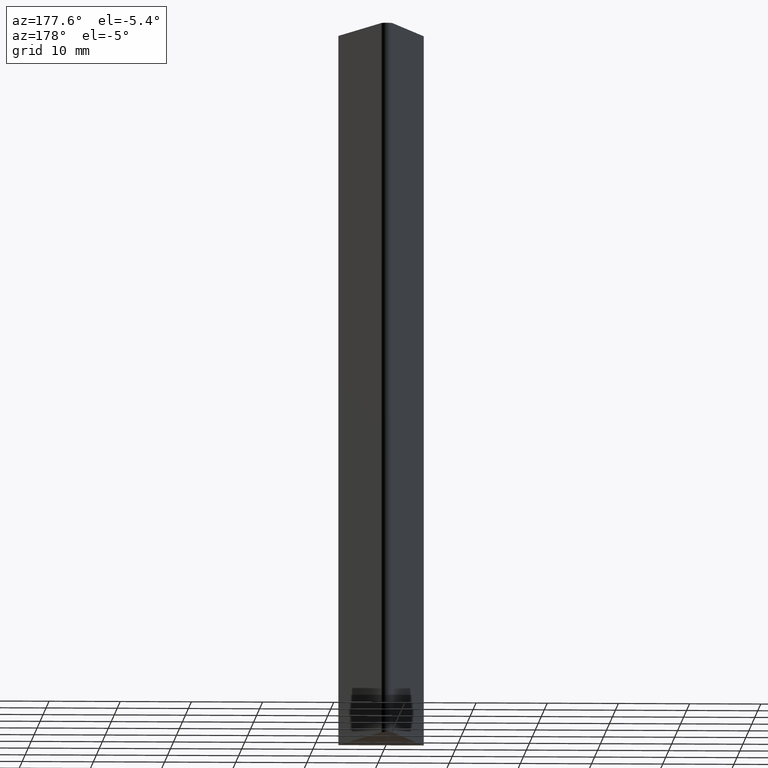
[diagram: clean part render]
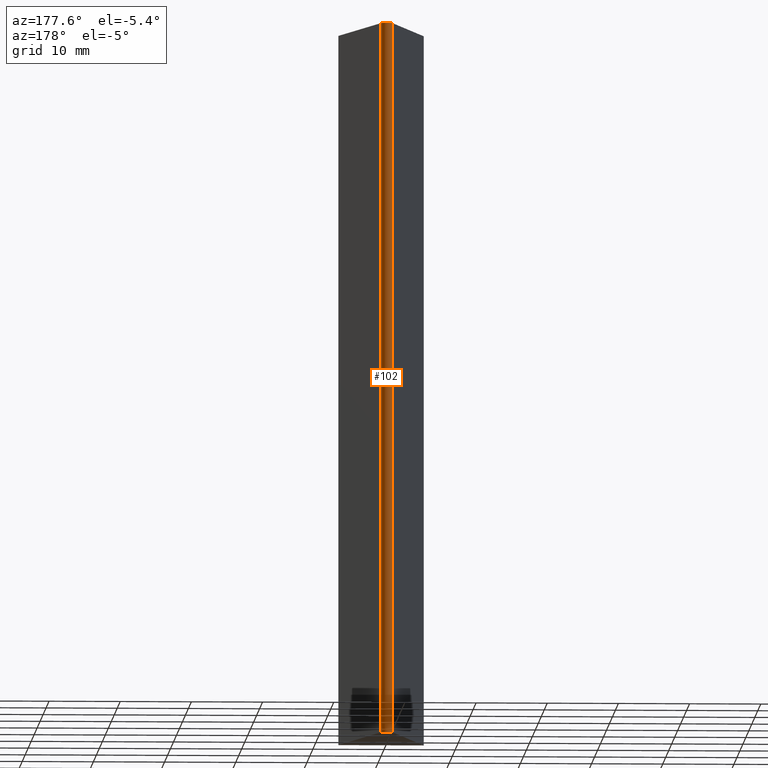
[diagram: same view with one face highlighted and labeled with its STEP entity id]
A machine part, auxiliary view. The second image highlights one B-rep face of the part: STEP entity #102.
In plain terms, the highlighted cylindrical surface (edge-blend (fillet) strip) has radius 0.8354 mm, axis along (0, 0, 1).
Its self-contained STEP definition (entity closure, byte-faithful):
#16=CYLINDRICAL_SURFACE('',#132,0.83538851287625);
#19=FACE_OUTER_BOUND('',#25,.T.);
#25=EDGE_LOOP('',(#79,#80,#81,#82));
#29=CIRCLE('',#130,0.83538851287625);
#30=CIRCLE('',#133,0.83538851287625);
#35=LINE('',#179,#45);
#37=LINE('',#184,#47);
#45=VECTOR('',#149,10.);
#47=VECTOR('',#155,10.);
#52=VERTEX_POINT('',#168);
#54=VERTEX_POINT('',#172);
#56=VERTEX_POINT('',#177);
#57=VERTEX_POINT('',#182);
#62=EDGE_CURVE('',#52,#54,#29,.T.);
#64=EDGE_CURVE('',#56,#54,#35,.T.);
#66=EDGE_CURVE('',#56,#57,#30,.T.);
#67=EDGE_CURVE('',#57,#52,#37,.T.);
#79=ORIENTED_EDGE('',*,*,#66,.T.);
#80=ORIENTED_EDGE('',*,*,#67,.T.);
#81=ORIENTED_EDGE('',*,*,#62,.T.);
#82=ORIENTED_EDGE('',*,*,#64,.F.);
#102=ADVANCED_FACE('',(#19),#16,.T.);
#130=AXIS2_PLACEMENT_3D('',#174,#144,#145);
#132=AXIS2_PLACEMENT_3D('',#181,#151,#152);
#133=AXIS2_PLACEMENT_3D('',#183,#153,#154);
#144=DIRECTION('center_axis',(0.,0.,1.));
#145=DIRECTION('ref_axis',(-0.965925826289069,-0.25881904510252,0.));
#149=DIRECTION('',(0.,0.,-1.));
#151=DIRECTION('center_axis',(0.,0.,1.));
#152=DIRECTION('ref_axis',(-0.965925826289069,-0.25881904510252,0.));
#153=DIRECTION('center_axis',(0.,0.,-1.));
#154=DIRECTION('ref_axis',(-0.965925826289069,-0.25881904510252,0.));
#155=DIRECTION('',(0.,0.,-1.));
#168=CARTESIAN_POINT('',(0.806923339572389,19.380825944316,-50.));
#172=CARTESIAN_POINT('',(-0.806923339572389,19.380825944316,-50.));
#174=CARTESIAN_POINT('Origin',(0.,19.1646114871238,-50.));
#177=CARTESIAN_POINT('',(-0.806923339572389,19.380825944316,50.));
#179=CARTESIAN_POINT('',(-0.806923339572389,19.380825944316,0.));
#181=CARTESIAN_POINT('Origin',(0.,19.1646114871238,0.));
#182=CARTESIAN_POINT('',(0.806923339572389,19.380825944316,50.));
#183=CARTESIAN_POINT('Origin',(0.,19.1646114871238,50.));
#184=CARTESIAN_POINT('',(0.806923339572389,19.380825944316,0.));